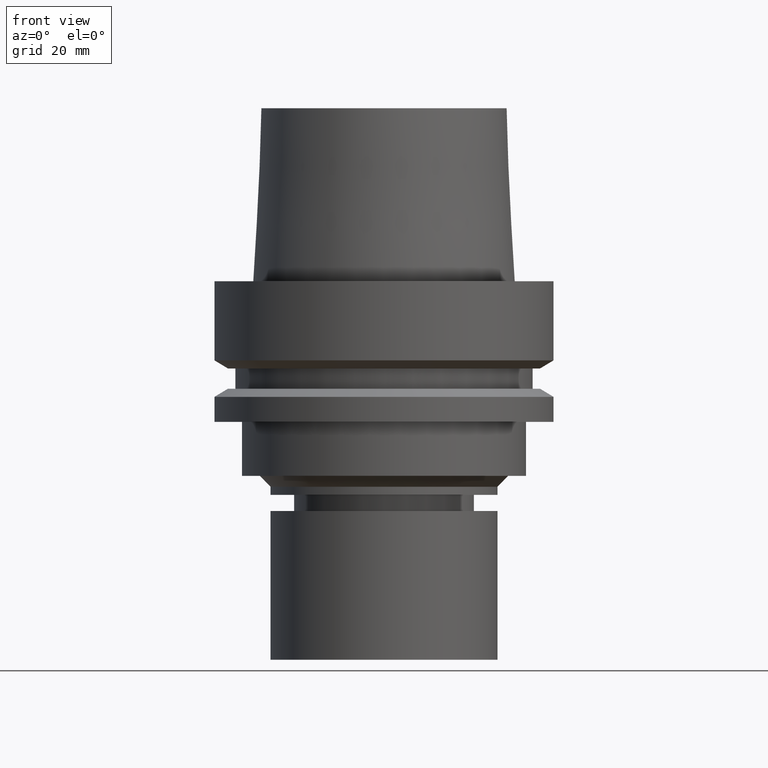
[diagram: clean part render]
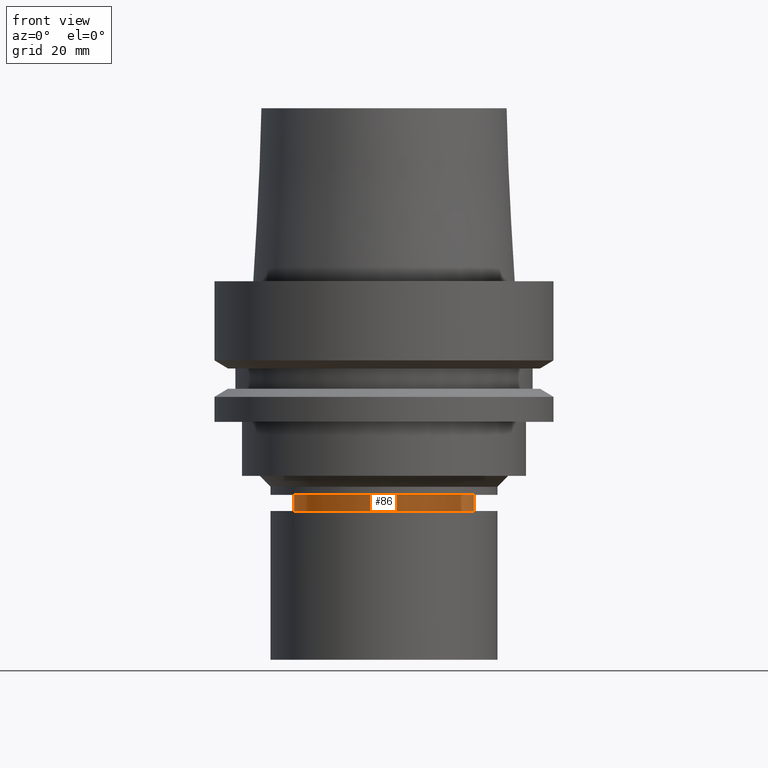
[diagram: same view with one face highlighted and labeled with its STEP entity id]
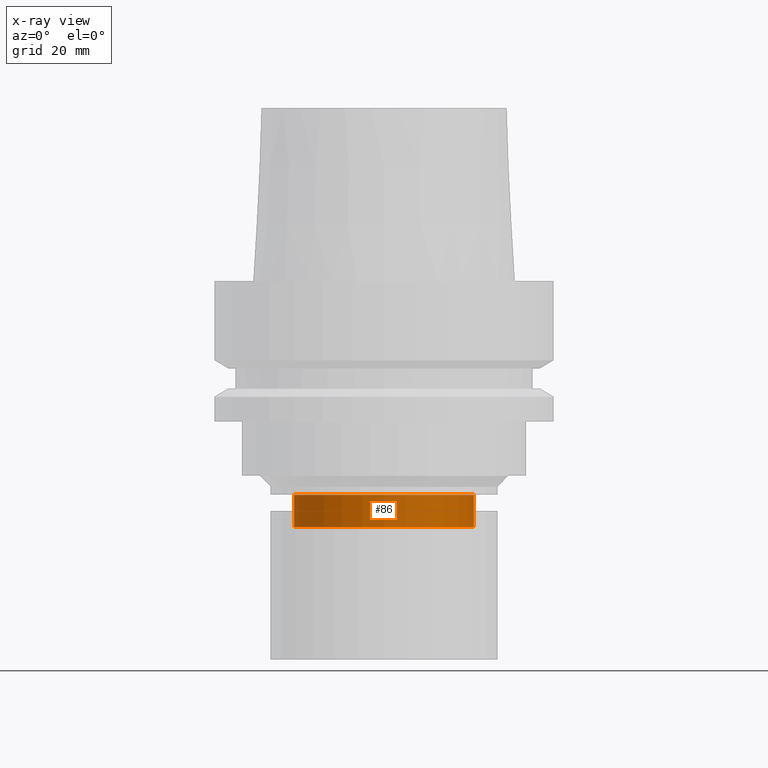
[diagram: x-ray of the same camera — body ghosted, the highlighted face saturated]
A machine part, front view. The second image highlights one B-rep face of the part: STEP entity #86.
The next image is the same camera in x-ray: the body ghosted, the highlighted face saturated — about 0% of this face is hidden behind the body in this view.
In plain terms, the highlighted cylindrical surface (bore or boss wall) has radius 16.75 mm, axis along (-0, -0, 1).
Its self-contained STEP definition (entity closure, byte-faithful):
#86=ADVANCED_FACE('Unnamed[1]',(#229,#230),#231,.T.);
#100=EDGE_CURVE('Unnamed[1]',#250,#250,#251,.T.);
#178=EDGE_CURVE('Unnamed[1]',#373,#373,#374,.T.);
#229=FACE_BOUND('',#431,.T.);
#230=FACE_BOUND('',#432,.T.);
#231=CYLINDRICAL_SURFACE('',#433,16.7499999999962);
#250=VERTEX_POINT('',#457);
#251=CIRCLE('',#458,16.7500000000017);
#373=VERTEX_POINT('',#610);
#374=CIRCLE('',#611,16.7499999999907);
#431=EDGE_LOOP('',(#662));
#432=EDGE_LOOP('',(#663));
#433=AXIS2_PLACEMENT_3D('',#664,#665,#666);
#457=CARTESIAN_POINT('',(2.78407069311031E-015,16.7500000000017,-45.4673248654009));
#458=AXIS2_PLACEMENT_3D('',#683,#684,#685);
#610=CARTESIAN_POINT('',(2.41867742831597E-015,16.7499999999907,-39.4999999999992));
#611=AXIS2_PLACEMENT_3D('',#819,#820,#821);
#662=ORIENTED_EDGE('',*,*,#178,.F.);
#663=ORIENTED_EDGE('',*,*,#100,.T.);
#664=CARTESIAN_POINT('',(2.60137406071314E-015,5.20274812142628E-015,-42.4836624327001));
#665=DIRECTION('',(-6.12323399573676E-017,-1.22464679914735E-016,1.0));
#666=DIRECTION('',(-1.23259516440783E-032,1.0,1.22464679914735E-016));
#683=CARTESIAN_POINT('',(2.78407069311031E-015,5.56814138622061E-015,-45.4673248654009));
#684=DIRECTION('',(-6.12323399573677E-017,-1.22464679914735E-016,1.0));
#685=DIRECTION('',(-1.23259516440783E-032,1.0,1.22464679914735E-016));
#819=CARTESIAN_POINT('',(2.41867742831597E-015,4.83735485663195E-015,-39.4999999999992));
#820=DIRECTION('',(-6.12323399573677E-017,-1.22464679914735E-016,1.0));
#821=DIRECTION('',(-1.23259516440783E-032,1.0,1.22464679914735E-016));